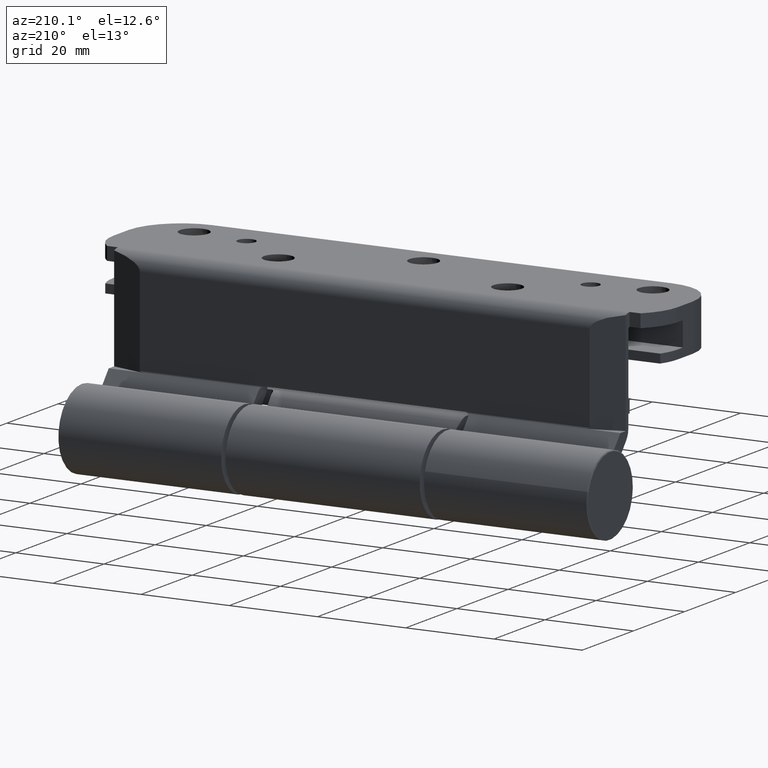
[diagram: clean part render]
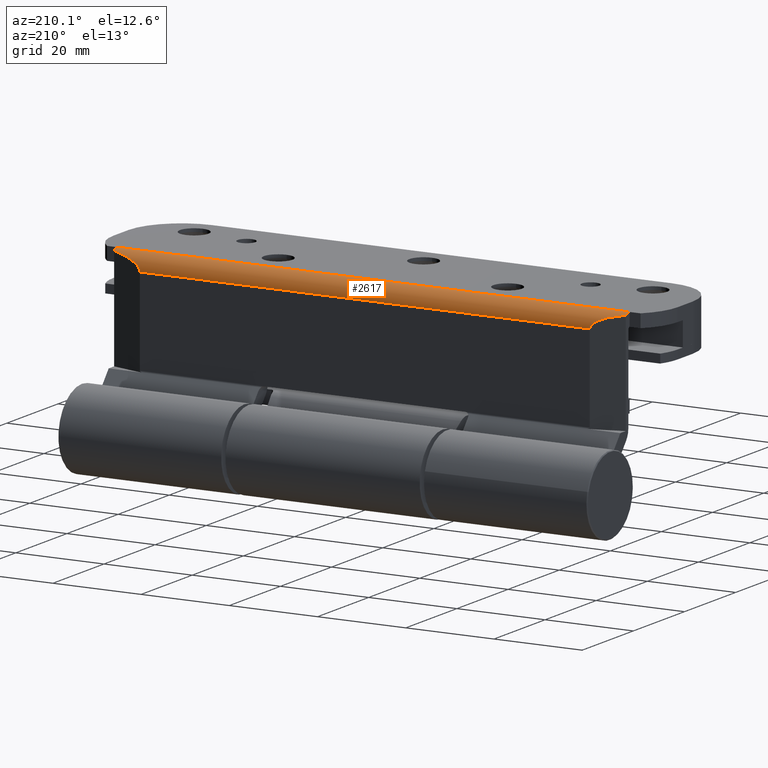
[diagram: same view with one face highlighted and labeled with its STEP entity id]
A machine part, auxiliary view. The second image highlights one B-rep face of the part: STEP entity #2617.
In plain terms, the highlighted cylindrical surface (edge-blend (fillet) strip) has radius 3.5 mm, axis along (-1, -0, -0).
Its self-contained STEP definition (entity closure, byte-faithful):
#27 = VERTEX_POINT ( 'NONE', #5949 ) ;
#137 = VERTEX_POINT ( 'NONE', #2104 ) ;
#175 = LINE ( 'NONE', #6331, #13125 ) ;
#844 = DIRECTION ( 'NONE',  ( -1.221245327087676730E-15, -1.000000000000000000, -1.019244706040663108E-30 ) ) ;
#1106 = EDGE_CURVE ( 'NONE', #137, #8934, #16192, .T. ) ;
#2104 = CARTESIAN_POINT ( 'NONE',  ( -26.49999999999995381, 57.99999999999995737, 6.938893903907228378E-15 ) ) ;
#2220 = CARTESIAN_POINT ( 'NONE',  ( -26.50000000000007105, -58.00000000000006395, 6.938893903907228378E-15 ) ) ;
#2437 = DIRECTION ( 'NONE',  ( -1.221245327087676730E-15, -1.000000000000000000, -1.019244706040663108E-30 ) ) ;
#2617 = ADVANCED_FACE ( 'NONE', ( #8904 ), #13541, .T. ) ;
#2731 = CARTESIAN_POINT ( 'NONE',  ( -28.00000000000006750, -58.00000000000004974, 0.3377223398316267500 ) ) ;
#3384 = EDGE_CURVE ( 'NONE', #15771, #27, #175, .T. ) ;
#3499 = ORIENTED_EDGE ( 'NONE', *, *, #4497, .F. ) ;
#3704 = VECTOR ( 'NONE', #844, 1000.000000000000000 ) ;
#3746 = AXIS2_PLACEMENT_3D ( 'NONE', #11651, #7126, #14611 ) ;
#4497 = EDGE_CURVE ( 'NONE', #27, #9870, #9424, .T. ) ;
#5194 = CIRCLE ( 'NONE', #14866, 3.499999999999999556 ) ;
#5228 = ORIENTED_EDGE ( 'NONE', *, *, #1106, .T. ) ;
#5483 = CARTESIAN_POINT ( 'NONE',  ( -26.49999999999992539, 63.99999999999994316, 6.938893903907228378E-15 ) ) ;
#5547 = CARTESIAN_POINT ( 'NONE',  ( -29.99999999999995381, 50.99999999999992895, 3.500000000000016875 ) ) ;
#5799 = EDGE_CURVE ( 'NONE', #8934, #9870, #15358, .T. ) ;
#5875 = DIRECTION ( 'NONE',  ( 0.000000000000000000, 0.000000000000000000, 1.000000000000000000 ) ) ;
#5949 = CARTESIAN_POINT ( 'NONE',  ( -30.00000000000007816, -51.00000000000007105, 3.500000000000010214 ) ) ;
#6331 = CARTESIAN_POINT ( 'NONE',  ( -29.99999999999993605, 63.99999999999992895, 3.500000000000010214 ) ) ;
#6848 = CARTESIAN_POINT ( 'NONE',  ( -27.99999999999995026, 57.99999999999997158, 0.3377223398316267500 ) ) ;
#7126 = DIRECTION ( 'NONE',  ( 1.221245327087676730E-15, 1.000000000000000000, 1.019244706040663108E-30 ) ) ;
#7935 = AXIS2_PLACEMENT_3D ( 'NONE', #9002, #19913, #5875 ) ;
#8013 =( BOUNDED_CURVE ( )  B_SPLINE_CURVE ( 3, ( #6848, #19173, #18012, #8363 ),
 .UNSPECIFIED., .F., .F. ) 
 B_SPLINE_CURVE_WITH_KNOTS ( ( 4, 4 ),
 ( 2.013707370868533353, 3.141592653589796669 ),
 .UNSPECIFIED. ) 
 CURVE ( )  GEOMETRIC_REPRESENTATION_ITEM ( )  RATIONAL_B_SPLINE_CURVE ( ( 1.000000000000000000, 0.8967695031523433835, 0.8967695031523433835, 1.000000000000000000 ) ) 
 REPRESENTATION_ITEM ( '' )  );
#8339 = EDGE_CURVE ( 'NONE', #14504, #15771, #8013, .T. ) ;
#8363 = CARTESIAN_POINT ( 'NONE',  ( -29.99999999999995381, 50.99999999999992895, 3.500000000000016875 ) ) ;
#8595 = DIRECTION ( 'NONE',  ( 0.000000000000000000, 0.000000000000000000, 1.000000000000000000 ) ) ;
#8813 = EDGE_LOOP ( 'NONE', ( #3499, #18915, #19491, #18842, #5228, #15629 ) ) ;
#8904 = FACE_OUTER_BOUND ( 'NONE', #8813, .T. ) ;
#8934 = VERTEX_POINT ( 'NONE', #2220 ) ;
#9002 = CARTESIAN_POINT ( 'NONE',  ( -26.50000000000016342, -116.0813060074752201, 3.500000000000003109 ) ) ;
#9424 =( BOUNDED_CURVE ( )  B_SPLINE_CURVE ( 3, ( #12172, #12069, #18252, #16739 ),
 .UNSPECIFIED., .F., .F. ) 
 B_SPLINE_CURVE_WITH_KNOTS ( ( 4, 4 ),
 ( 0.000000000000000000, 1.127885282721257765 ),
 .UNSPECIFIED. ) 
 CURVE ( )  GEOMETRIC_REPRESENTATION_ITEM ( )  RATIONAL_B_SPLINE_CURVE ( ( 1.000000000000000000, 0.8967695031523442717, 0.8967695031523442717, 1.000000000000000000 ) ) 
 REPRESENTATION_ITEM ( '' )  );
#9870 = VERTEX_POINT ( 'NONE', #2731 ) ;
#11651 = CARTESIAN_POINT ( 'NONE',  ( -26.50000000000007816, -58.00000000000005684, 3.500000000000003109 ) ) ;
#12069 = CARTESIAN_POINT ( 'NONE',  ( -30.00000000000008171, -51.00000000000007816, 2.109208805004640030 ) ) ;
#12172 = CARTESIAN_POINT ( 'NONE',  ( -30.00000000000007816, -51.00000000000007105, 3.500000000000010214 ) ) ;
#12677 = DIRECTION ( 'NONE',  ( -1.221245327087676730E-15, -1.000000000000000000, -1.019244706040663108E-30 ) ) ;
#13125 = VECTOR ( 'NONE', #12677, 1000.000000000000000 ) ;
#13541 = CYLINDRICAL_SURFACE ( 'NONE', #7935, 3.499999999999999556 ) ;
#13934 = CARTESIAN_POINT ( 'NONE',  ( -27.99999999999995026, 57.99999999999997158, 0.3377223398316267500 ) ) ;
#14504 = VERTEX_POINT ( 'NONE', #13934 ) ;
#14611 = DIRECTION ( 'NONE',  ( 0.000000000000000000, 0.000000000000000000, 1.000000000000000000 ) ) ;
#14866 = AXIS2_PLACEMENT_3D ( 'NONE', #16285, #2437, #8595 ) ;
#15358 = CIRCLE ( 'NONE', #3746, 3.499999999999999556 ) ;
#15629 = ORIENTED_EDGE ( 'NONE', *, *, #5799, .T. ) ;
#15771 = VERTEX_POINT ( 'NONE', #5547 ) ;
#16192 = LINE ( 'NONE', #5483, #3704 ) ;
#16285 = CARTESIAN_POINT ( 'NONE',  ( -26.49999999999995381, 57.99999999999995737, 3.500000000000003109 ) ) ;
#16739 = CARTESIAN_POINT ( 'NONE',  ( -28.00000000000006750, -58.00000000000004974, 0.3377223398316267500 ) ) ;
#18012 = CARTESIAN_POINT ( 'NONE',  ( -29.99999999999996447, 50.99999999999990763, 2.109208805004644915 ) ) ;
#18252 = CARTESIAN_POINT ( 'NONE',  ( -29.25659083596943333, -53.60193207410735283, 0.9337757091153507938 ) ) ;
#18842 = ORIENTED_EDGE ( 'NONE', *, *, #19188, .T. ) ;
#18915 = ORIENTED_EDGE ( 'NONE', *, *, #3384, .F. ) ;
#19173 = CARTESIAN_POINT ( 'NONE',  ( -29.25659083596931609, 53.60193207410720362, 0.9337757091153480182 ) ) ;
#19188 = EDGE_CURVE ( 'NONE', #14504, #137, #5194, .T. ) ;
#19491 = ORIENTED_EDGE ( 'NONE', *, *, #8339, .F. ) ;
#19913 = DIRECTION ( 'NONE',  ( 1.221245327087676730E-15, 1.000000000000000000, 1.019244706040663108E-30 ) ) ;